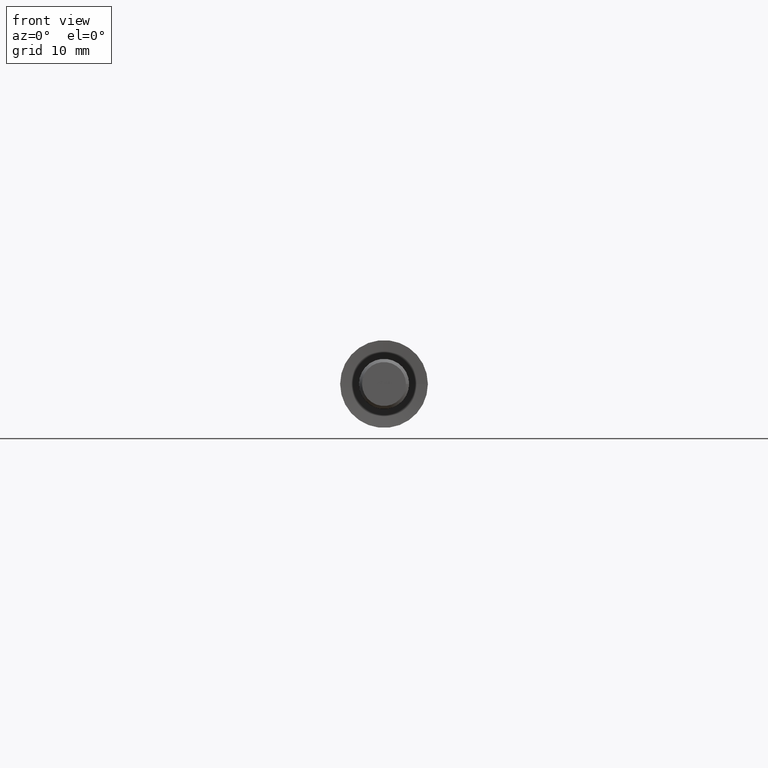
[diagram: clean part render]
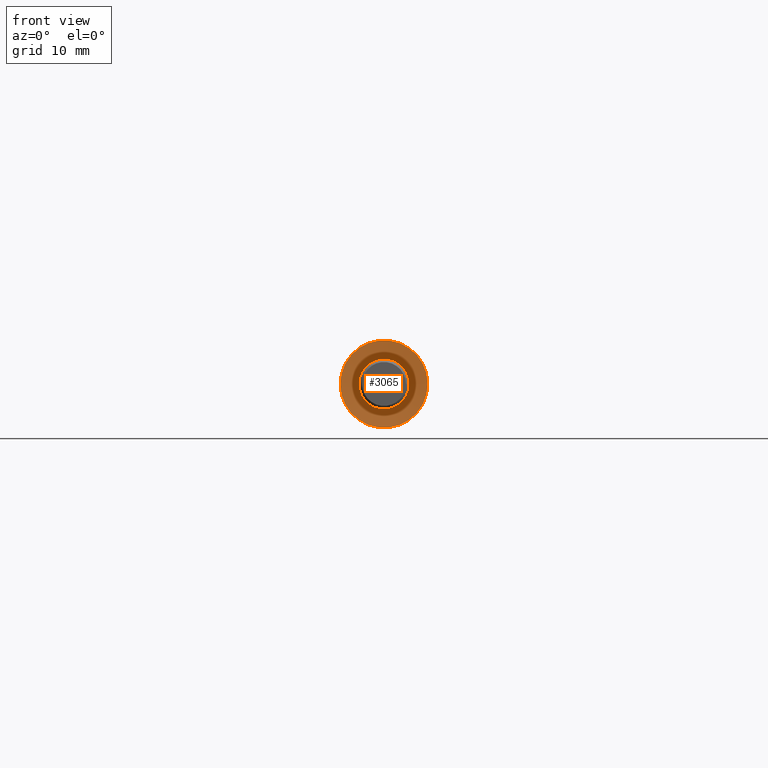
[diagram: same view with one face highlighted and labeled with its STEP entity id]
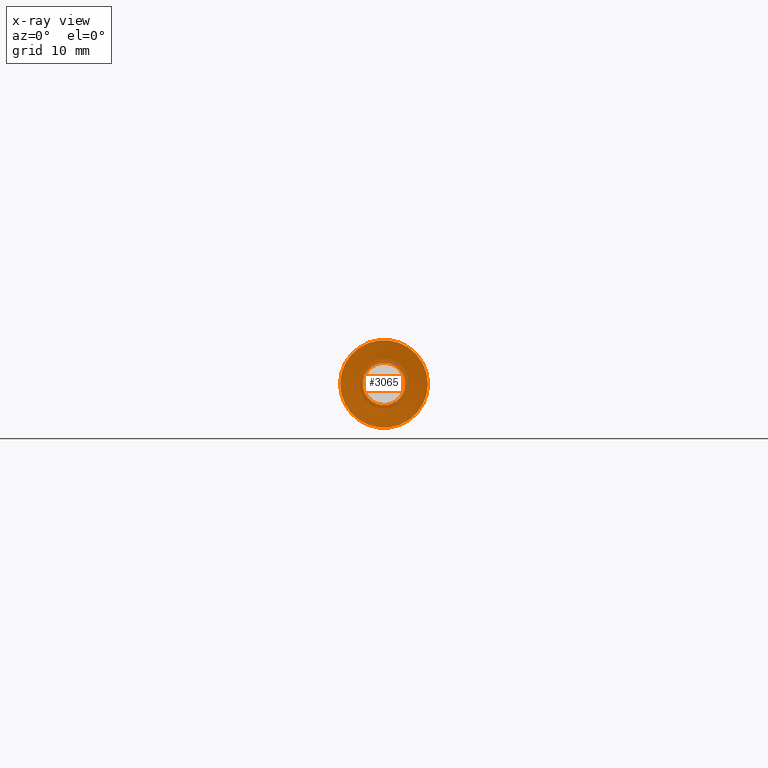
[diagram: x-ray of the same camera — body ghosted, the highlighted face saturated]
A machine part, front view. The second image highlights one B-rep face of the part: STEP entity #3065.
The next image is the same camera in x-ray: the body ghosted, the highlighted face saturated — about 12% of this face is hidden behind the body in this view.
In plain terms, the highlighted conical surface has half-angle 85 deg.
Its self-contained STEP definition (entity closure, byte-faithful):
#847 = DIRECTION ( 'NONE',  ( 1.000000000000000000, 0.000000000000000000, 0.000000000000000000 ) ) ;
#1179 = EDGE_CURVE ( 'NONE', #6081, #6081, #4699, .T. ) ;
#1378 = FACE_OUTER_BOUND ( 'NONE', #12478, .T. ) ;
#2698 = ORIENTED_EDGE ( 'NONE', *, *, #1179, .F. ) ;
#2800 = DIRECTION ( 'NONE',  ( 1.674721690771509348E-33, -1.000000000000000000, -0.000000000000000000 ) ) ;
#2995 = FACE_BOUND ( 'NONE', #5216, .T. ) ;
#3065 = ADVANCED_FACE ( 'NONE', ( #1378, #2995 ), #6132, .F. ) ;
#3522 = CARTESIAN_POINT ( 'NONE',  ( 1.669407244337670838E-31, 0.3173331105176275257, 0.000000000000000000 ) ) ;
#4699 = CIRCLE ( 'NONE', #5093, 3.372865949385575046 ) ;
#5093 = AXIS2_PLACEMENT_3D ( 'NONE', #10191, #13483, #847 ) ;
#5216 = EDGE_LOOP ( 'NONE', ( #2698 ) ) ;
#5701 = AXIS2_PLACEMENT_3D ( 'NONE', #8040, #2800, #8181 ) ;
#5992 = CIRCLE ( 'NONE', #5701, 7.000000000000005329 ) ;
#6081 = VERTEX_POINT ( 'NONE', #9661 ) ;
#6132 = CONICAL_SURFACE ( 'NONE', #6293, 3.372865949385575046, 1.483529864195180181 ) ;
#6293 = AXIS2_PLACEMENT_3D ( 'NONE', #3522, #13234, #9841 ) ;
#8040 = CARTESIAN_POINT ( 'NONE',  ( 1.674721690771509485E-31, 0.000000000000000000, 0.000000000000000000 ) ) ;
#8181 = DIRECTION ( 'NONE',  ( 1.000000000000000000, 1.674721690771509348E-33, 0.000000000000000000 ) ) ;
#9661 = CARTESIAN_POINT ( 'NONE',  ( 3.372865949385575046, 0.3173331105176275257, 0.000000000000000000 ) ) ;
#9841 = DIRECTION ( 'NONE',  ( 1.000000000000000000, 0.000000000000000000, 0.000000000000000000 ) ) ;
#10191 = CARTESIAN_POINT ( 'NONE',  ( 1.669407244337670838E-31, 0.3173331105176275257, 0.000000000000000000 ) ) ;
#10748 = CARTESIAN_POINT ( 'NONE',  ( 7.000000000000005329, 1.172305183540057433E-32, 0.000000000000000000 ) ) ;
#11406 = ORIENTED_EDGE ( 'NONE', *, *, #11723, .T. ) ;
#11723 = EDGE_CURVE ( 'NONE', #13498, #13498, #5992, .T. ) ;
#12478 = EDGE_LOOP ( 'NONE', ( #11406 ) ) ;
#13234 = DIRECTION ( 'NONE',  ( 1.674721690771509348E-33, -1.000000000000000000, -0.000000000000000000 ) ) ;
#13483 = DIRECTION ( 'NONE',  ( 1.674721690771509348E-33, -1.000000000000000000, -0.000000000000000000 ) ) ;
#13498 = VERTEX_POINT ( 'NONE', #10748 ) ;